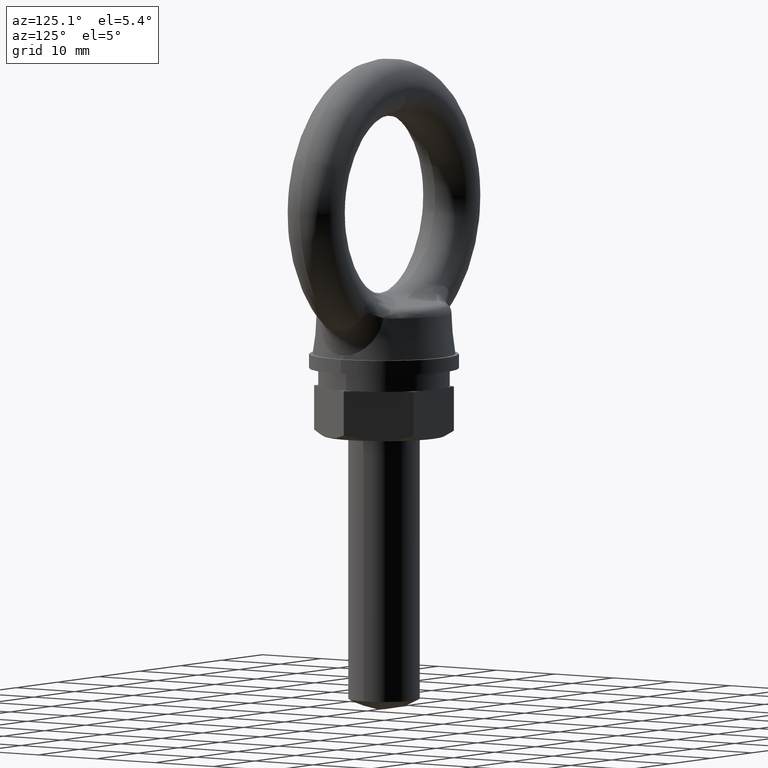
[diagram: clean part render]
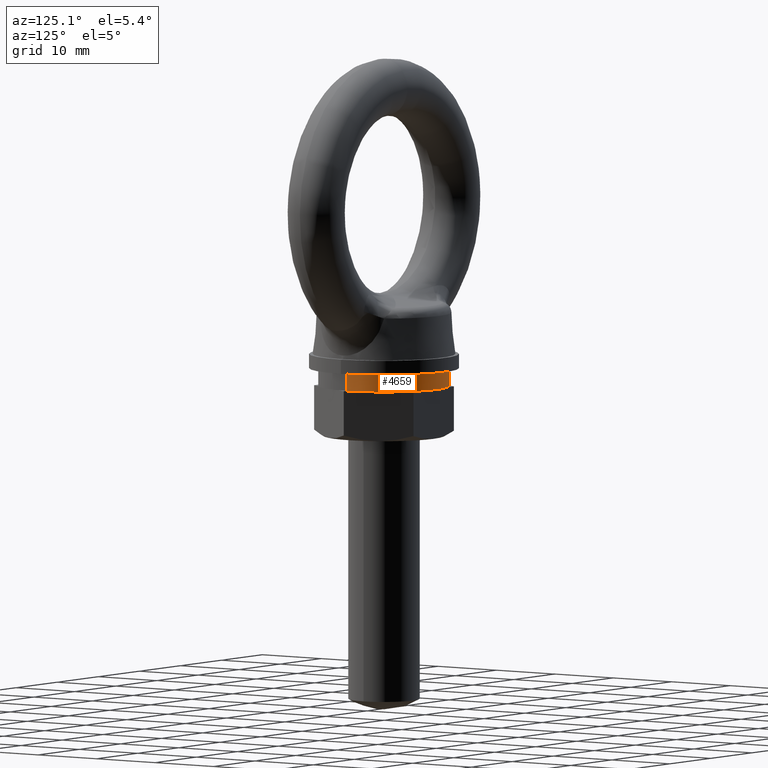
[diagram: same view with one face highlighted and labeled with its STEP entity id]
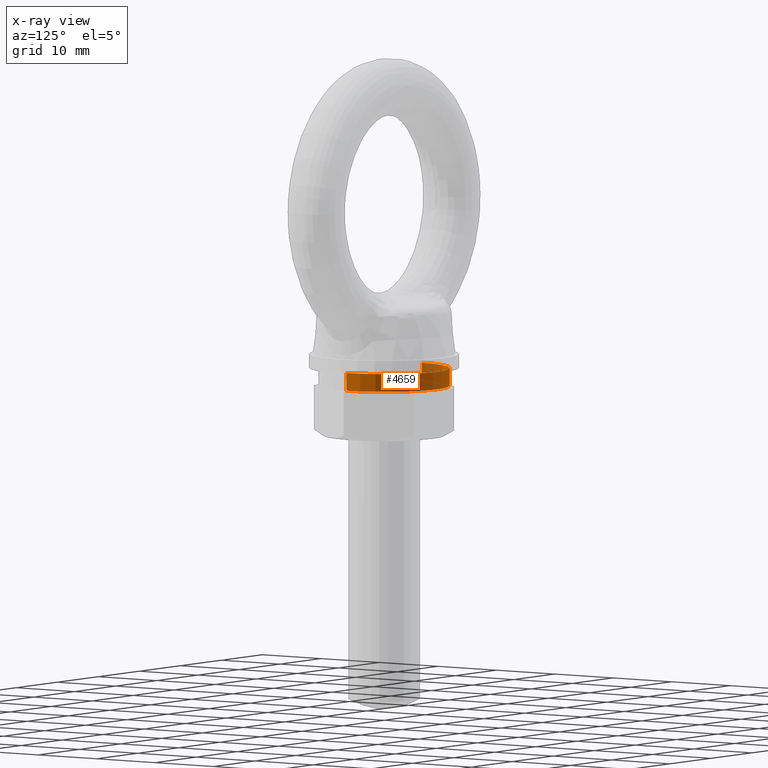
[diagram: x-ray of the same camera — body ghosted, the highlighted face saturated]
A machine part, auxiliary view. The second image highlights one B-rep face of the part: STEP entity #4659.
The next image is the same camera in x-ray: the body ghosted, the highlighted face saturated — about 8% of this face is hidden behind the body in this view.
In plain terms, the highlighted cylindrical surface (partial cylindrical patch) has radius 9.2 mm, axis along (0, 0, -1).
Its self-contained STEP definition (entity closure, byte-faithful):
#3031 = DIRECTION ( 'NONE',  ( 1.000000000000000000, 0.0000000000000000000, 0.0000000000000000000 ) ) ;
#3032 = DIRECTION ( 'NONE',  ( 0.0000000000000000000, 0.0000000000000000000, -1.000000000000000000 ) ) ;
#3033 = CARTESIAN_POINT ( 'NONE',  ( 0.0000000000000000000, 0.0000000000000000000, -23.00000000000000000 ) ) ;
#3095 = AXIS2_PLACEMENT_3D ( 'NONE', #3033, #3032, #3031 ) ;
#3096 = CIRCLE ( 'NONE', #3095, 9.199999999999999300 ) ;
#3418 = CARTESIAN_POINT ( 'NONE',  ( -9.199999999999999300, 0.0000000000000000000, -23.00000000000000000 ) ) ;
#3450 = CARTESIAN_POINT ( 'NONE',  ( 9.199999999999999300, 1.126637845516587000E-015, -25.50000000000000000 ) ) ;
#3457 = CARTESIAN_POINT ( 'NONE',  ( 9.199999999999999300, 1.126637845516587000E-015, -23.00000000000000000 ) ) ;
#3569 = DIRECTION ( 'NONE',  ( -1.000000000000000000, 0.0000000000000000000, 0.0000000000000000000 ) ) ;
#3570 = DIRECTION ( 'NONE',  ( 0.0000000000000000000, 0.0000000000000000000, -1.000000000000000000 ) ) ;
#3571 = CARTESIAN_POINT ( 'NONE',  ( 0.0000000000000000000, 0.0000000000000000000, 974.5000000000000000 ) ) ;
#3572 = AXIS2_PLACEMENT_3D ( 'NONE', #3571, #3570, #3569 ) ;
#3575 = CYLINDRICAL_SURFACE ( 'NONE', #3572, 9.199999999999999300 ) ;
#3576 = FACE_OUTER_BOUND ( 'NONE', #4662, .T. ) ;
#3581 = DIRECTION ( 'NONE',  ( 0.0000000000000000000, 0.0000000000000000000, -1.000000000000000000 ) ) ;
#3582 = VECTOR ( 'NONE', #3581, 1000.000000000000000 ) ;
#3583 = CARTESIAN_POINT ( 'NONE',  ( -9.199999999999999300, 0.0000000000000000000, 974.5000000000000000 ) ) ;
#3584 = LINE ( 'NONE', #3583, #3582 ) ;
#3585 = CARTESIAN_POINT ( 'NONE',  ( -9.199999999999999300, 0.0000000000000000000, -25.50000000000000000 ) ) ;
#3586 = DIRECTION ( 'NONE',  ( 1.000000000000000000, 0.0000000000000000000, 0.0000000000000000000 ) ) ;
#3587 = DIRECTION ( 'NONE',  ( 0.0000000000000000000, 0.0000000000000000000, -1.000000000000000000 ) ) ;
#3588 = CARTESIAN_POINT ( 'NONE',  ( 0.0000000000000000000, 0.0000000000000000000, -25.50000000000000000 ) ) ;
#3589 = AXIS2_PLACEMENT_3D ( 'NONE', #3588, #3587, #3586 ) ;
#3590 = CIRCLE ( 'NONE', #3589, 9.199999999999999300 ) ;
#3591 = DIRECTION ( 'NONE',  ( 0.0000000000000000000, 0.0000000000000000000, -1.000000000000000000 ) ) ;
#3592 = VECTOR ( 'NONE', #3591, 1000.000000000000000 ) ;
#3593 = CARTESIAN_POINT ( 'NONE',  ( 9.199999999999999300, 1.126637845516587000E-015, 974.5000000000000000 ) ) ;
#3594 = LINE ( 'NONE', #3593, #3592 ) ;
#4605 = ORIENTED_EDGE ( 'NONE', *, *, #4606, .T. ) ;
#4606 = EDGE_CURVE ( 'NONE', #4607, #4608, #3096, .T. ) ;
#4607 = VERTEX_POINT ( 'NONE', #3418 ) ;
#4608 = VERTEX_POINT ( 'NONE', #3457 ) ;
#4609 = ORIENTED_EDGE ( 'NONE', *, *, #4650, .T. ) ;
#4610 = VERTEX_POINT ( 'NONE', #3450 ) ;
#4650 = EDGE_CURVE ( 'NONE', #4608, #4610, #3594, .T. ) ;
#4651 = ORIENTED_EDGE ( 'NONE', *, *, #4652, .F. ) ;
#4652 = EDGE_CURVE ( 'NONE', #4653, #4610, #3590, .T. ) ;
#4653 = VERTEX_POINT ( 'NONE', #3585 ) ;
#4654 = ORIENTED_EDGE ( 'NONE', *, *, #4655, .F. ) ;
#4655 = EDGE_CURVE ( 'NONE', #4607, #4653, #3584, .T. ) ;
#4659 = ADVANCED_FACE ( 'NONE', ( #3576 ), #3575, .T. ) ;
#4662 = EDGE_LOOP ( 'NONE', ( #4605, #4609, #4651, #4654 ) ) ;